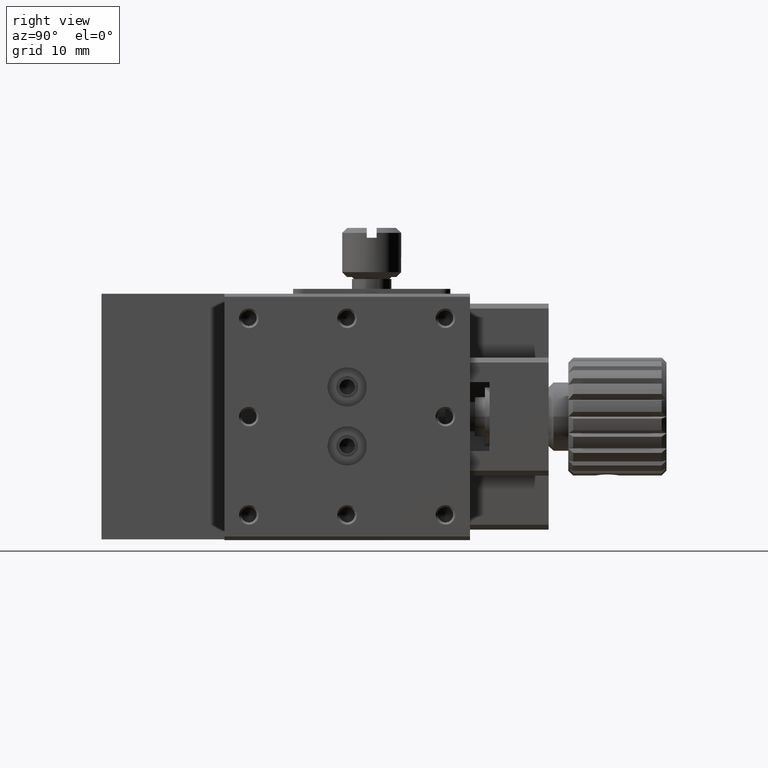
[diagram: clean part render]
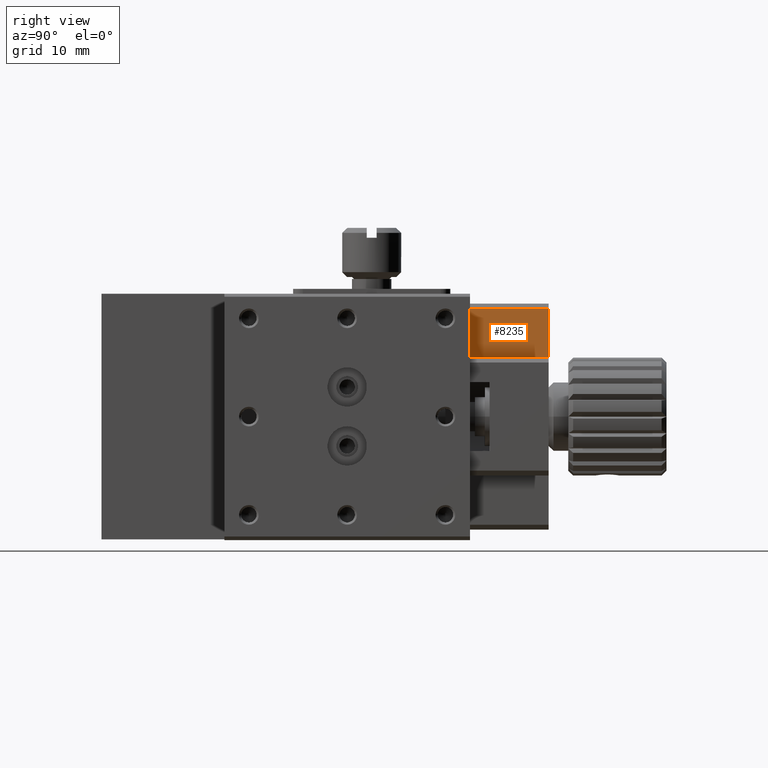
[diagram: same view with one face highlighted and labeled with its STEP entity id]
A machine part, right view. The second image highlights one B-rep face of the part: STEP entity #8235.
In plain terms, the highlighted planar face has unit normal (1, 0, -0).
Its self-contained STEP definition (entity closure, byte-faithful):
#136 = EDGE_LOOP ( 'NONE', ( #3460, #5718, #6215, #474 ) ) ;
#315 = VERTEX_POINT ( 'NONE', #4353 ) ;
#372 = CARTESIAN_POINT ( 'NONE',  ( 6.499999999999999112, 45.50000000000000000, -1.499999999999996891 ) ) ;
#474 = ORIENTED_EDGE ( 'NONE', *, *, #2711, .T. ) ;
#766 = VECTOR ( 'NONE', #6929, 1000.000000000000000 ) ;
#1073 = AXIS2_PLACEMENT_3D ( 'NONE', #2395, #8491, #2531 ) ;
#1120 = VERTEX_POINT ( 'NONE', #8426 ) ;
#1587 = EDGE_CURVE ( 'NONE', #5156, #1120, #3443, .T. ) ;
#2395 = CARTESIAN_POINT ( 'NONE',  ( 6.499999999999999112, 45.50000000000000000, -6.499999999999997335 ) ) ;
#2531 = DIRECTION ( 'NONE',  ( 0.000000000000000000, 0.000000000000000000, 1.000000000000000000 ) ) ;
#2711 = EDGE_CURVE ( 'NONE', #8098, #315, #3403, .T. ) ;
#3403 = LINE ( 'NONE', #3918, #766 ) ;
#3443 = LINE ( 'NONE', #5445, #3949 ) ;
#3460 = ORIENTED_EDGE ( 'NONE', *, *, #8107, .T. ) ;
#3918 = CARTESIAN_POINT ( 'NONE',  ( 6.499999999999999112, 45.50000000000000000, -6.499999999999997335 ) ) ;
#3922 = DIRECTION ( 'NONE',  ( 0.000000000000000000, 0.000000000000000000, -1.000000000000000000 ) ) ;
#3949 = VECTOR ( 'NONE', #8105, 1000.000000000000000 ) ;
#4258 = EDGE_CURVE ( 'NONE', #1120, #8098, #5884, .T. ) ;
#4353 = CARTESIAN_POINT ( 'NONE',  ( 6.499999999999999112, 45.50000000000000000, -6.499999999999997335 ) ) ;
#5156 = VERTEX_POINT ( 'NONE', #372 ) ;
#5445 = CARTESIAN_POINT ( 'NONE',  ( 6.499999999999999112, 45.50000000000000000, -1.499999999999996669 ) ) ;
#5654 = VECTOR ( 'NONE', #3922, 1000.000000000000000 ) ;
#5660 = DIRECTION ( 'NONE',  ( 0.000000000000000000, 0.000000000000000000, 1.000000000000000000 ) ) ;
#5670 = VECTOR ( 'NONE', #5660, 1000.000000000000000 ) ;
#5718 = ORIENTED_EDGE ( 'NONE', *, *, #1587, .T. ) ;
#5833 = PLANE ( 'NONE',  #1073 ) ;
#5846 = CARTESIAN_POINT ( 'NONE',  ( 6.499999999999999112, 37.50000000000000000, 3.061616997868380282E-15 ) ) ;
#5884 = LINE ( 'NONE', #5846, #5654 ) ;
#6215 = ORIENTED_EDGE ( 'NONE', *, *, #4258, .T. ) ;
#6929 = DIRECTION ( 'NONE',  ( -0.000000000000000000, 1.000000000000000000, -0.000000000000000000 ) ) ;
#7131 = FACE_OUTER_BOUND ( 'NONE', #136, .T. ) ;
#7499 = CARTESIAN_POINT ( 'NONE',  ( 6.499999999999999112, 37.50000000000000000, -6.499999999999997335 ) ) ;
#7541 = LINE ( 'NONE', #7586, #5670 ) ;
#7586 = CARTESIAN_POINT ( 'NONE',  ( 6.499999999999999112, 45.50000000000000000, -6.499999999999997335 ) ) ;
#8098 = VERTEX_POINT ( 'NONE', #7499 ) ;
#8105 = DIRECTION ( 'NONE',  ( 0.000000000000000000, -1.000000000000000000, 0.000000000000000000 ) ) ;
#8107 = EDGE_CURVE ( 'NONE', #315, #5156, #7541, .T. ) ;
#8235 = ADVANCED_FACE ( 'NONE', ( #7131 ), #5833, .T. ) ;
#8426 = CARTESIAN_POINT ( 'NONE',  ( 6.499999999999999112, 37.50000000000000000, -1.499999999999996891 ) ) ;
#8491 = DIRECTION ( 'NONE',  ( 1.000000000000000000, 0.000000000000000000, -0.000000000000000000 ) ) ;